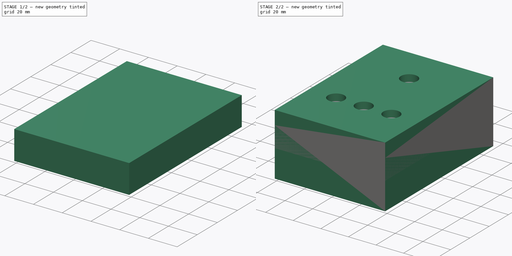
[diagram: build sequence overview — one tinted view per stage of 2, left to right]
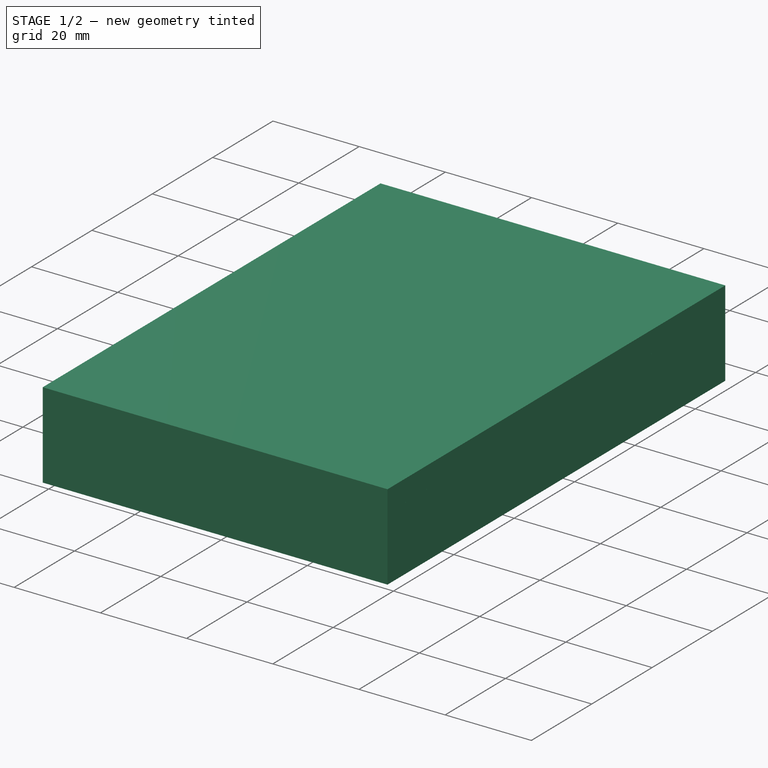
[diagram: stage 1 of 2 — iso view after this stage's code; geometry added in this stage tinted green]
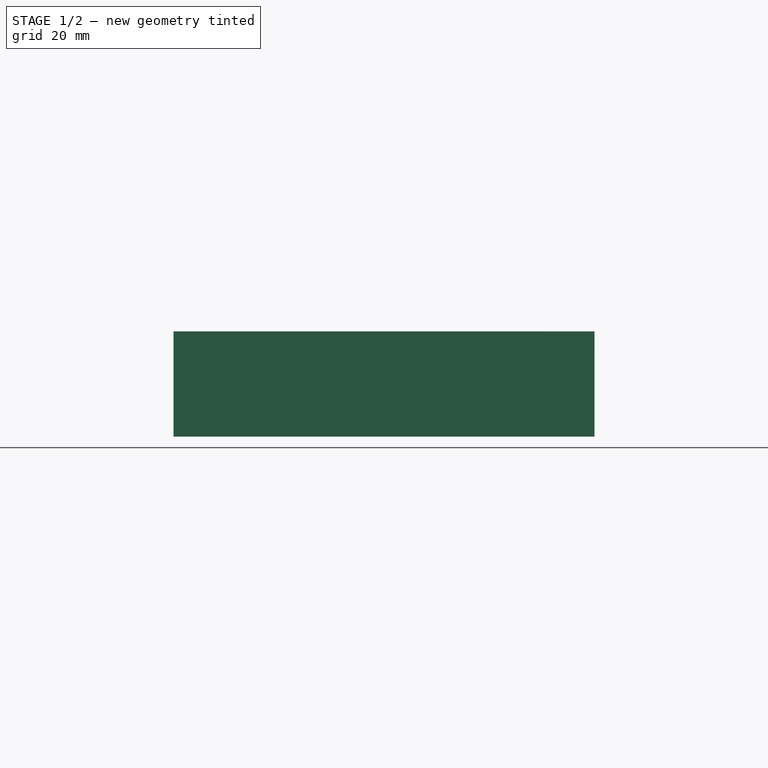
[diagram: stage 1 of 2 — front view after this stage's code; geometry added in this stage tinted green]
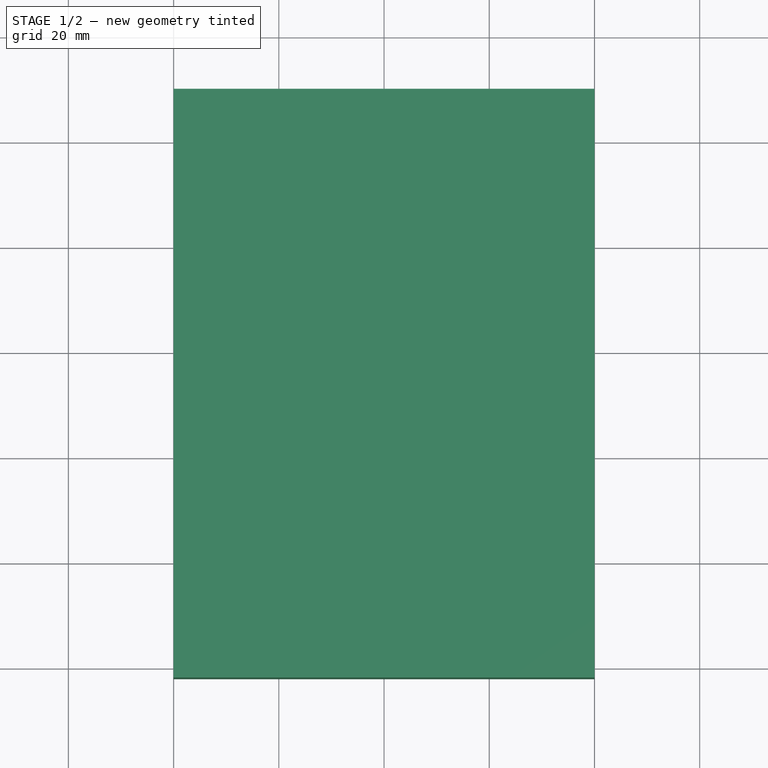
[diagram: stage 1 of 2 — top view after this stage's code; geometry added in this stage tinted green]
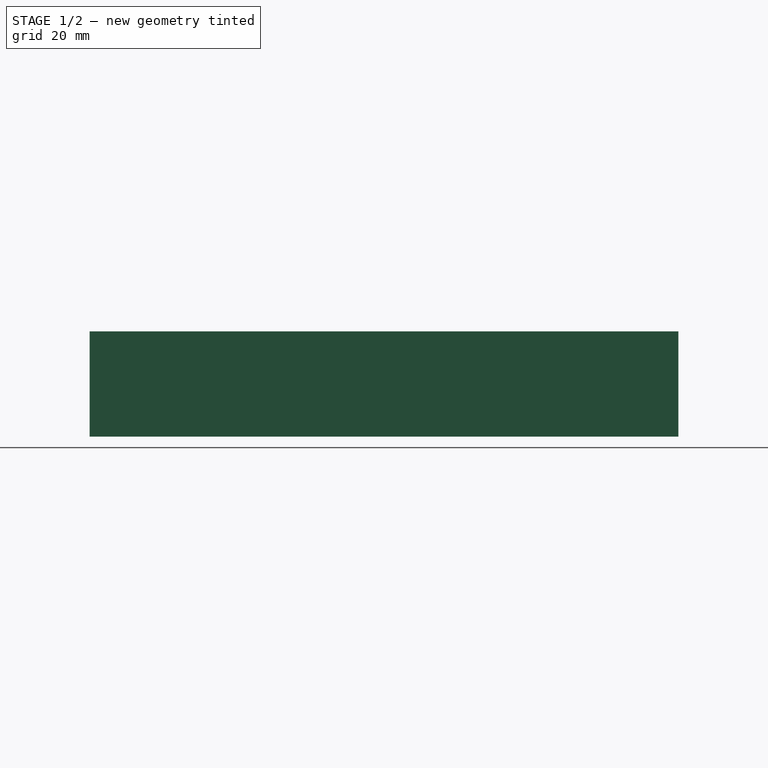
[diagram: stage 1 of 2 — right view after this stage's code; geometry added in this stage tinted green]
FCSTD DOCUMENT  (FreeCAD 0.19R24291 (Git))
Label: TesterBox
License: All rights reserved
LicenseURL: http://en.wikipedia.org/wiki/All_rights_reserved
objects: Sketcher::SketchObject×4, PartDesign::Pad×4, PartDesign::Body×4
note: 16 computed .brp shape members not serialized (recipe doc carries the construction recipe); baked Part::Feature solids carry a one-line shape summary decoded from their .brp

FEATURE [PartDesign::Body] Body001
  Group = -> [Sketch001,Pad001]
  Origin = -> Origin001
  Tip = -> Pad001
FEATURE [Sketcher::SketchObject] Sketch002
  FullyConstrained = false
  MapMode = 5
  Support = -> [XY_Plane003]
  sketch-geometry (4):
    g0: LineSegment StartX=39.9944 StartY=-81.9628 StartZ=0 EndX=-40.0099 EndY=-81.9628 EndZ=0
    g1: LineSegment StartX=39.9944 StartY=29.9605 StartZ=0 EndX=39.9944 EndY=-81.9628 EndZ=0
    g2: LineSegment StartX=-40.0099 StartY=29.9605 StartZ=0 EndX=-40.0099 EndY=-81.9628 EndZ=0
    g3: LineSegment StartX=-40.0099 StartY=29.9605 StartZ=0 EndX=39.9944 EndY=29.9605 EndZ=0
  constraints (7):
    c: Horizontal(g0)
    c: Coincident(g1,g0)
    c: Vertical(g1)
    c: Coincident(g2,g0)
    c: Vertical(g2)
    c: Coincident(g3,g2)
    c: Horizontal(g3)
FEATURE [Sketcher::SketchObject] Sketch003
  FullyConstrained = false
  MapMode = 5
  Support = -> [XY_Plane002]
  sketch-geometry (8):
    g0: LineSegment StartX=39.9944 StartY=-81.9628 StartZ=0 EndX=-40.0099 EndY=-81.9628 EndZ=0
    g1: LineSegment StartX=39.9944 StartY=29.9605 StartZ=0 EndX=39.9944 EndY=-81.9628 EndZ=0
    g2: LineSegment StartX=-40.0099 StartY=29.9605 StartZ=0 EndX=-40.0099 EndY=-81.9628 EndZ=0
    g3: LineSegment StartX=-40.0099 StartY=29.9605 StartZ=0 EndX=39.9944 EndY=29.9605 EndZ=0
    g4: LineSegment StartX=-33.0019 StartY=23.3407 StartZ=0 EndX=34.2405 EndY=23.3407 EndZ=0
    g5: LineSegment StartX=34.2405 StartY=23.3407 StartZ=0 EndX=34.2405 EndY=-75.405 EndZ=0
    g6: LineSegment StartX=34.2405 StartY=-75.405 StartZ=0 EndX=-33.0019 EndY=-75.405 EndZ=0
    g7: LineSegment StartX=-33.0019 StartY=-75.405 StartZ=0 EndX=-33.0019 EndY=23.3407 EndZ=0
  constraints (15):
    c: Horizontal(g0)
    c: Coincident(g1,g0)
    c: Vertical(g1)
    c: Coincident(g2,g0)
    c: Vertical(g2)
    c: Coincident(g3,g2)
    c: Horizontal(g3)
    c: Coincident(g4,g5)
    c: Coincident(g5,g6)
    c: Coincident(g6,g7)
    c: Coincident(g7,g4)
    c: Horizontal(g4)
    c: Horizontal(g6)
    c: Vertical(g5)
    c: Vertical(g7)
FEATURE [PartDesign::Pad] Pad002
  Direction = (1,1,1)
  Length = 5
  Length2 = 100
  Profile = -> Sketch002
  Type = 0
FEATURE [PartDesign::Body] Body003
  Group = -> [Sketch002,Pad002]
  Origin = -> Origin002
  Tip = -> Pad002
FEATURE [PartDesign::Pad] Pad003
  Direction = (1,1,1)
  Length = 15
  Length2 = 100
  Profile = -> Sketch003
  Reversed = true
  Type = 0
FEATURE [PartDesign::Body] Body002
  Group = -> [Sketch003,Pad003]
  Origin = -> Origin003
  Tip = -> Pad003
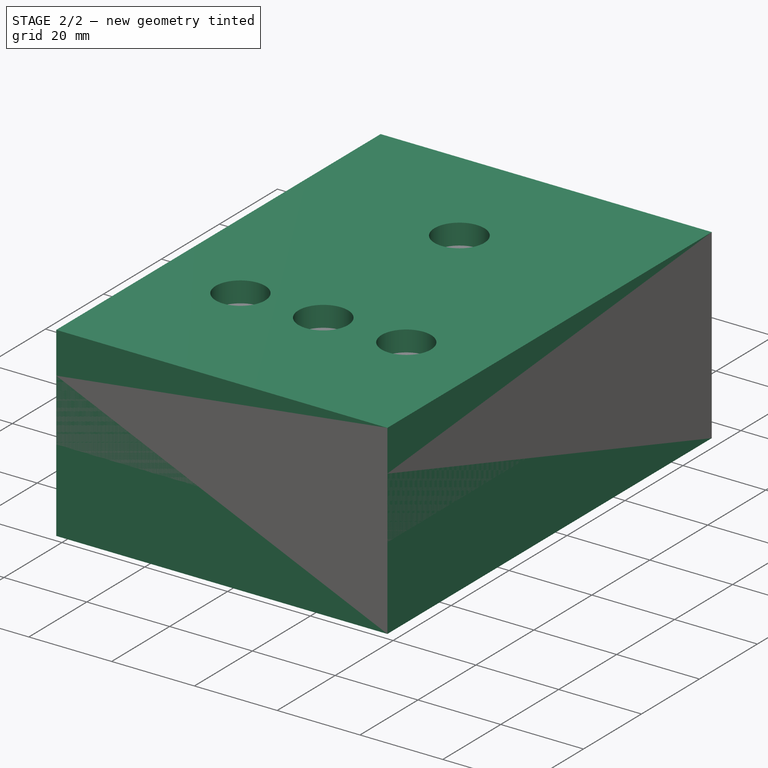
[diagram: stage 2 of 2 — iso view after this stage's code; geometry added in this stage tinted green]
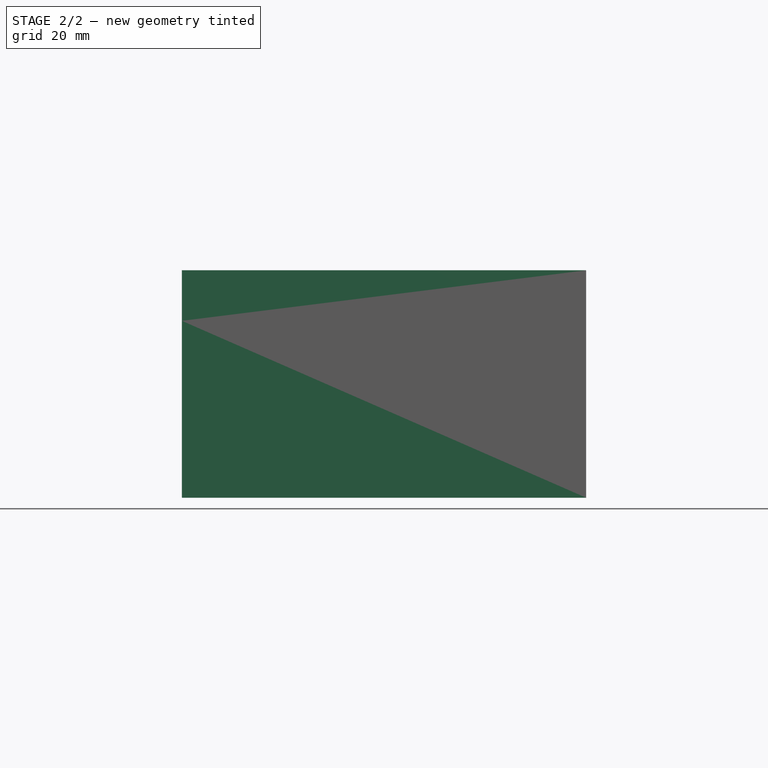
[diagram: stage 2 of 2 — front view after this stage's code; geometry added in this stage tinted green]
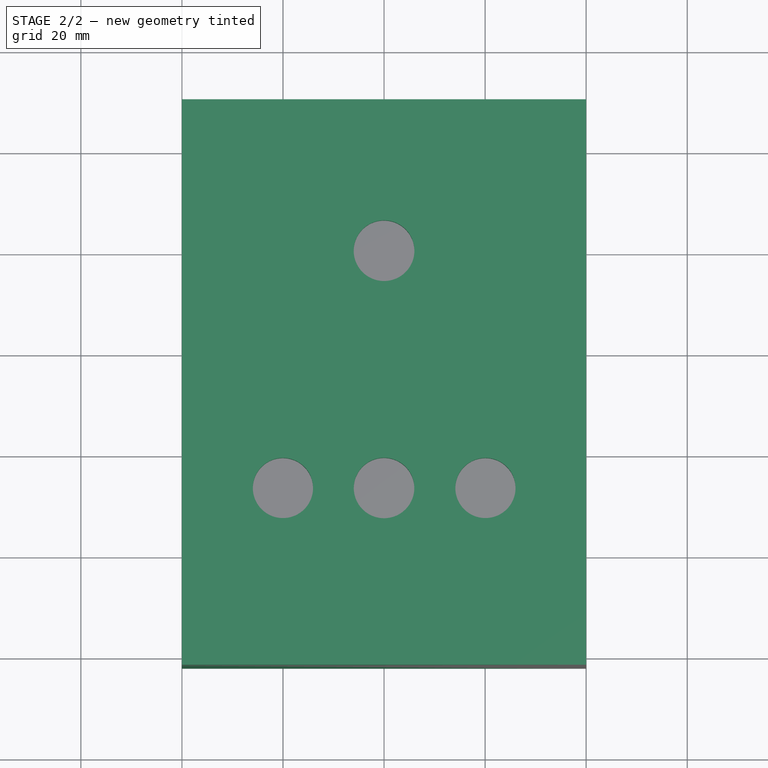
[diagram: stage 2 of 2 — top view after this stage's code; geometry added in this stage tinted green]
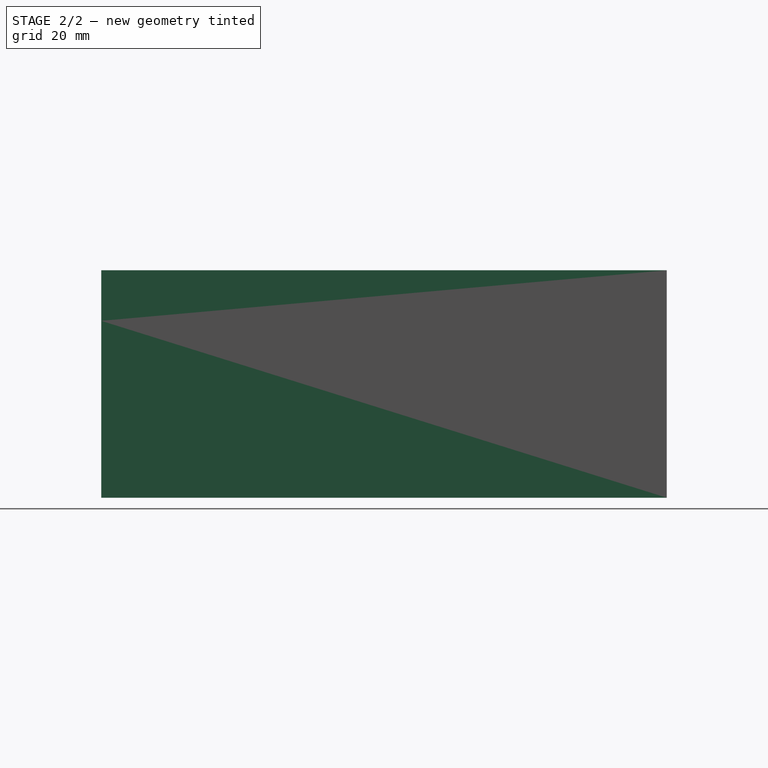
[diagram: stage 2 of 2 — right view after this stage's code; geometry added in this stage tinted green]
FEATURE [Sketcher::SketchObject] Sketch
  FullyConstrained = false
  MapMode = 5
  Support = -> [XY_Plane]
  sketch-geometry (8):
    g0: Circle CenterX=0 CenterY=0 CenterZ=0 NormalX=0 NormalY=0 NormalZ=1 AngleXU=0 Radius=6.00914
    g1: Circle CenterX=0 CenterY=-46.9692 CenterZ=0 NormalX=0 NormalY=0 NormalZ=1 AngleXU=0 Radius=5.98988
    g2: Circle CenterX=20.0655 CenterY=-46.9692 CenterZ=0 NormalX=0 NormalY=0 NormalZ=1 AngleXU=0 Radius=5.95677
    g3: Circle CenterX=-20.0067 CenterY=-46.9692 CenterZ=0 NormalX=0 NormalY=0 NormalZ=1 AngleXU=0 Radius=5.95853
    g4: LineSegment StartX=39.9944 StartY=-81.9628 StartZ=0 EndX=-40.0099 EndY=-81.9628 EndZ=0
    g5: LineSegment StartX=39.9944 StartY=29.9605 StartZ=0 EndX=39.9944 EndY=-81.9628 EndZ=0
    g6: LineSegment StartX=-40.0099 StartY=29.9605 StartZ=0 EndX=-40.0099 EndY=-81.9628 EndZ=0
    g7: LineSegment StartX=-40.0099 StartY=29.9605 StartZ=0 EndX=39.9944 EndY=29.9605 EndZ=0
  constraints (9):
    c: Coincident(g0,g-1)
    c: PointOnObject(g1,g-2)
    c: Horizontal(g4)
    c: Coincident(g5,g4)
    c: Vertical(g5)
    c: Coincident(g6,g4)
    c: Vertical(g6)
    c: Coincident(g7,g6)
    c: Horizontal(g7)
FEATURE [PartDesign::Pad] Pad
  Direction = (1,1,1)
  Length = 10
  Length2 = 100
  Profile = -> Sketch
  Type = 0
FEATURE [PartDesign::Body] Body
  Group = -> [Sketch,Pad]
  Origin = -> Origin
  Tip = -> Pad
FEATURE [Sketcher::SketchObject] Sketch001
  FullyConstrained = false
  MapMode = 5
  Support = -> [XY_Plane001]
  sketch-geometry (8):
    g0: LineSegment StartX=39.9944 StartY=-81.9628 StartZ=0 EndX=-40.0099 EndY=-81.9628 EndZ=0
    g1: LineSegment StartX=39.9944 StartY=29.9605 StartZ=0 EndX=39.9944 EndY=-81.9628 EndZ=0
    g2: LineSegment StartX=-40.0099 StartY=29.9605 StartZ=0 EndX=-40.0099 EndY=-81.9628 EndZ=0
    g3: LineSegment StartX=-40.0099 StartY=29.9605 StartZ=0 EndX=39.9944 EndY=29.9605 EndZ=0
    g4: LineSegment StartX=-33.0019 StartY=23.3407 StartZ=0 EndX=34.2405 EndY=23.3407 EndZ=0
    g5: LineSegment StartX=34.2405 StartY=23.3407 StartZ=0 EndX=34.2405 EndY=-75.405 EndZ=0
    g6: LineSegment StartX=34.2405 StartY=-75.405 StartZ=0 EndX=-33.0019 EndY=-75.405 EndZ=0
    g7: LineSegment StartX=-33.0019 StartY=-75.405 StartZ=0 EndX=-33.0019 EndY=23.3407 EndZ=0
  constraints (15):
    c: Horizontal(g0)
    c: Coincident(g1,g0)
    c: Vertical(g1)
    c: Coincident(g2,g0)
    c: Vertical(g2)
    c: Coincident(g3,g2)
    c: Horizontal(g3)
    c: Coincident(g4,g5)
    c: Coincident(g5,g6)
    c: Coincident(g6,g7)
    c: Coincident(g7,g4)
    c: Horizontal(g4)
    c: Horizontal(g6)
    c: Vertical(g5)
    c: Vertical(g7)
FEATURE [PartDesign::Pad] Pad001
  Direction = (1,1,1)
  Length = 35
  Length2 = 100
  Profile = -> Sketch001
  Reversed = true
  Type = 0
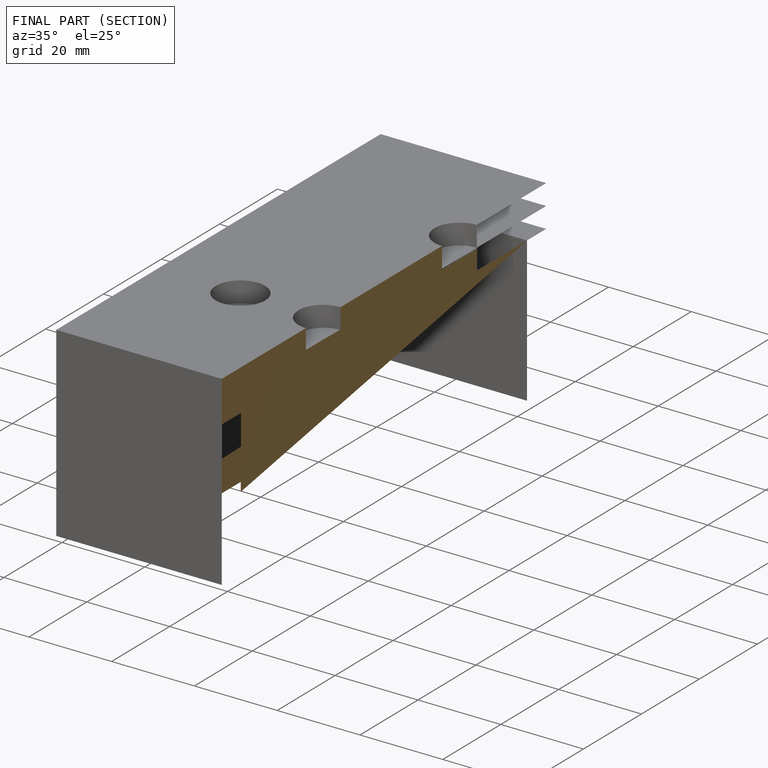
[diagram: finished part — half-section view (interior)]
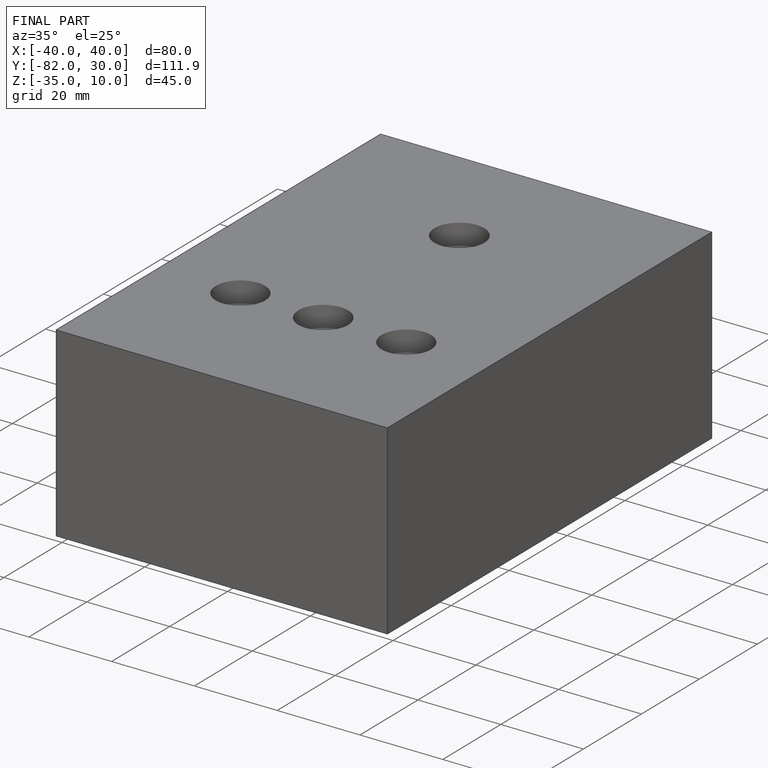
[diagram: finished part — iso view with bounding-box wireframe]
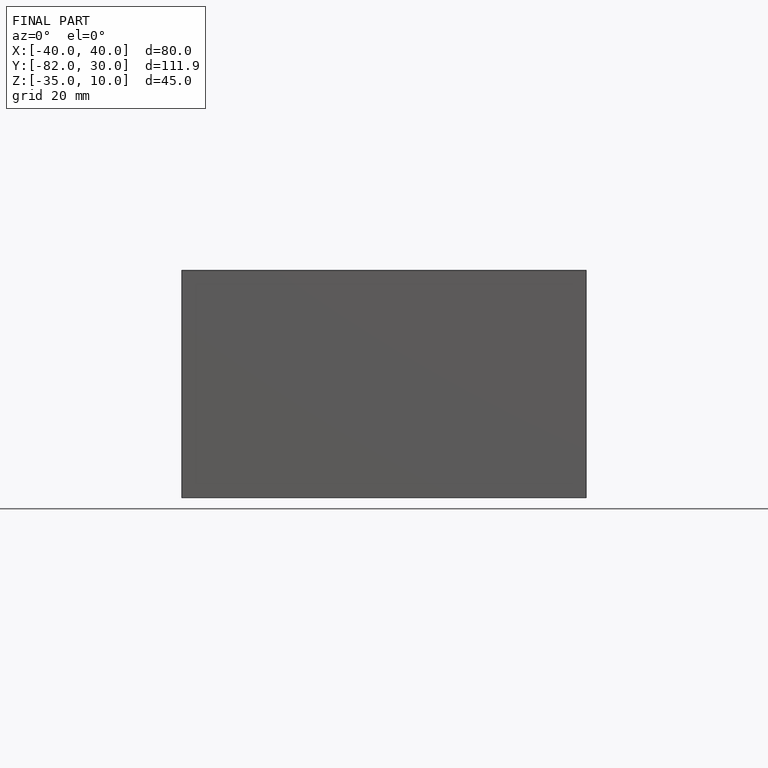
[diagram: finished part — front view with bounding-box wireframe]
